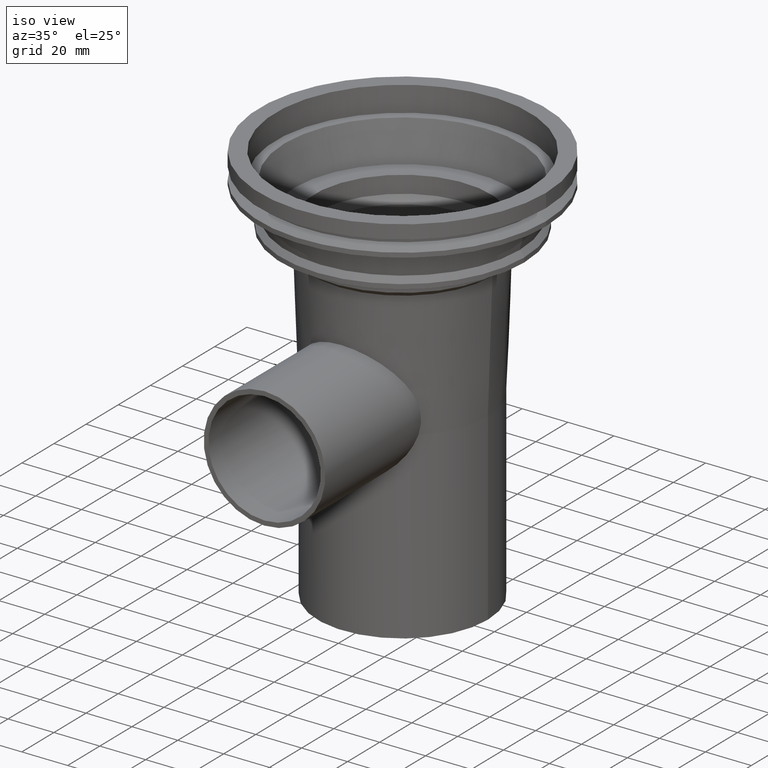
[diagram: clean part render]
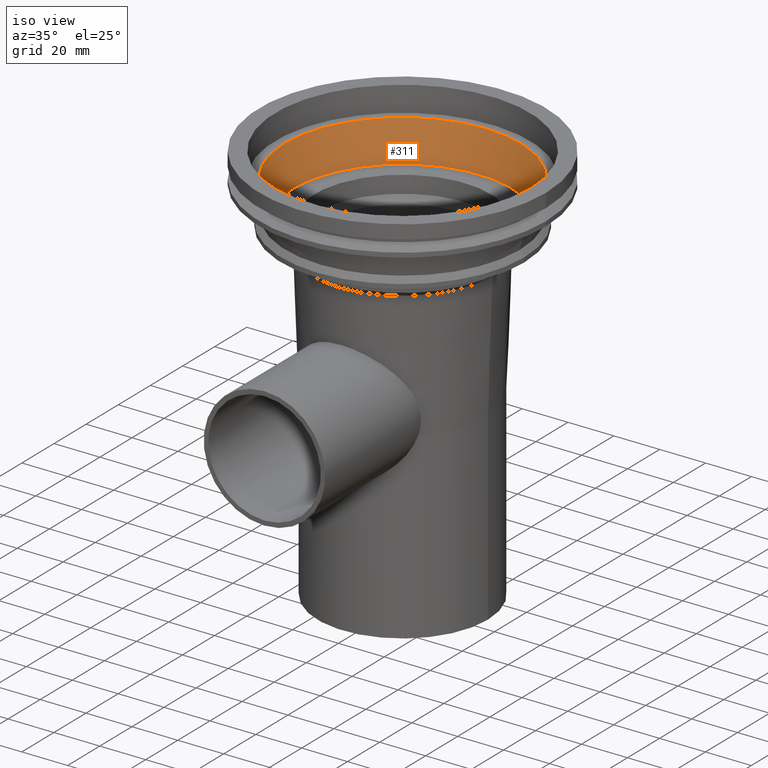
[diagram: same view with one face highlighted and labeled with its STEP entity id]
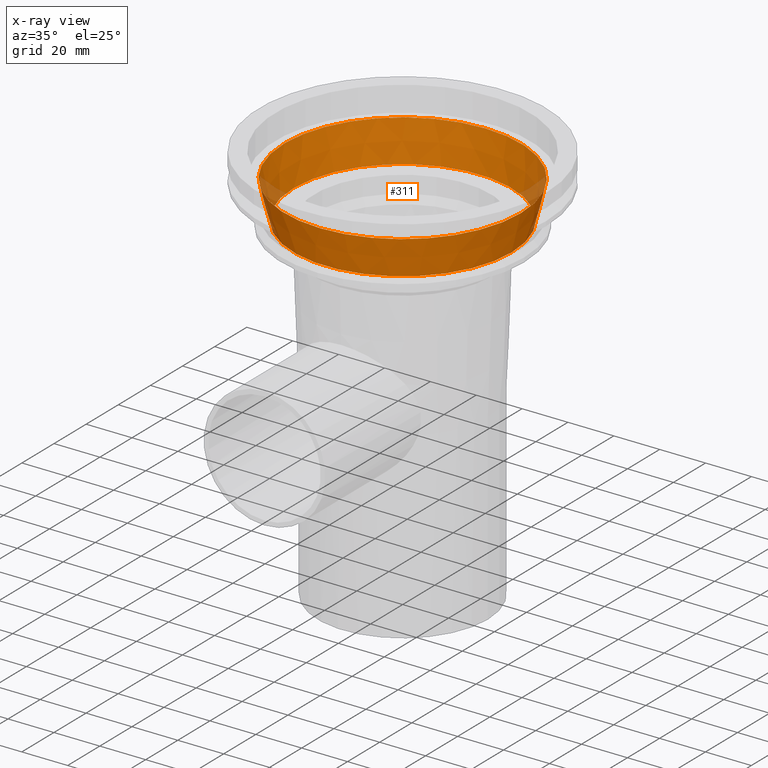
[diagram: x-ray of the same camera — body ghosted, the highlighted face saturated]
A machine part, iso view. The second image highlights one B-rep face of the part: STEP entity #311.
The next image is the same camera in x-ray: the body ghosted, the highlighted face saturated — about 3% of this face is hidden behind the body in this view.
In plain terms, the highlighted conical surface has half-angle 13.609 deg.
Its self-contained STEP definition (entity closure, byte-faithful):
#30=CONICAL_SURFACE('',#361,47.4999181723626,0.237521857903909);
#45=CIRCLE('',#360,47.4999181723626);
#46=CIRCLE('',#362,51.5);
#83=ORIENTED_EDGE('',*,*,#136,.T.);
#84=ORIENTED_EDGE('',*,*,#135,.F.);
#135=EDGE_CURVE('',#163,#163,#45,.T.);
#136=EDGE_CURVE('',#164,#164,#46,.T.);
#163=VERTEX_POINT('',#631);
#164=VERTEX_POINT('',#634);
#200=EDGE_LOOP('',(#83));
#201=EDGE_LOOP('',(#84));
#254=FACE_BOUND('',#200,.T.);
#255=FACE_BOUND('',#201,.T.);
#311=ADVANCED_FACE('',(#254,#255),#30,.F.);
#360=AXIS2_PLACEMENT_3D('',#630,#432,#433);
#361=AXIS2_PLACEMENT_3D('',#632,#434,#435);
#362=AXIS2_PLACEMENT_3D('',#633,#436,#437);
#432=DIRECTION('',(0.,0.,1.));
#433=DIRECTION('',(1.,0.,0.));
#434=DIRECTION('',(0.,0.,1.));
#435=DIRECTION('',(1.,0.,0.));
#436=DIRECTION('',(0.,0.,1.));
#437=DIRECTION('',(1.,0.,0.));
#630=CARTESIAN_POINT('',(0.,0.,-27.523));
#631=CARTESIAN_POINT('',(47.4999181723626,0.,-27.523));
#632=CARTESIAN_POINT('',(0.,0.,-27.523));
#633=CARTESIAN_POINT('',(0.,0.,-11.));
#634=CARTESIAN_POINT('',(51.5,0.,-11.));